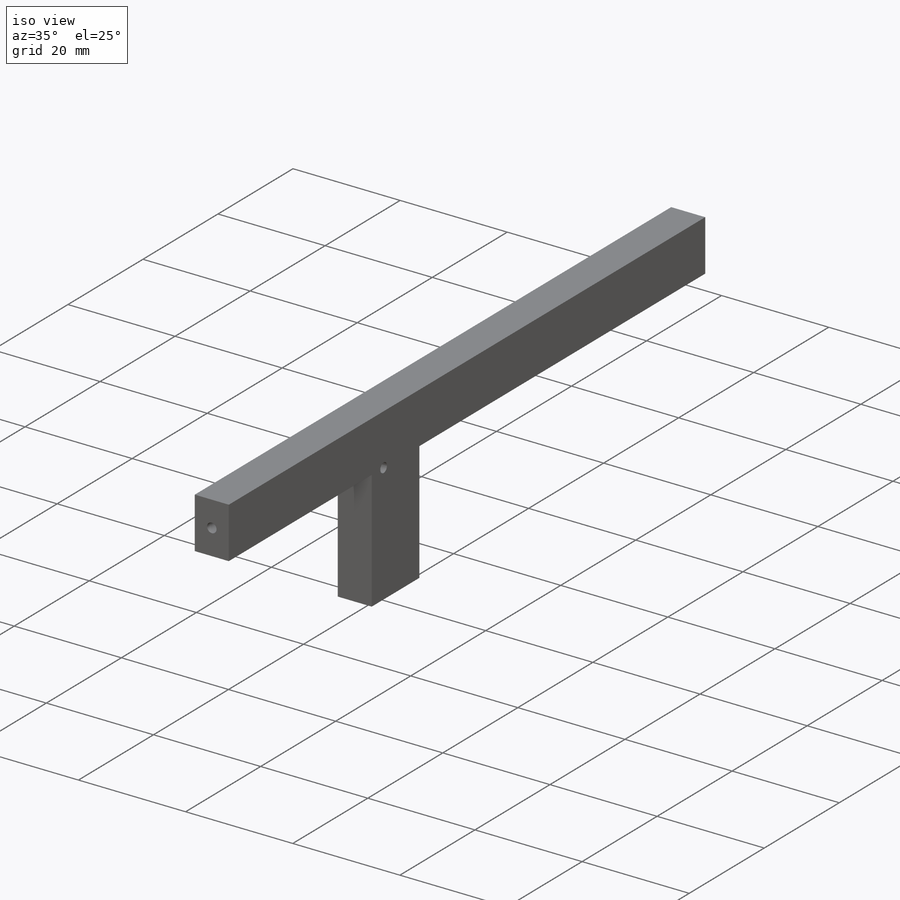
[diagram: iso view]
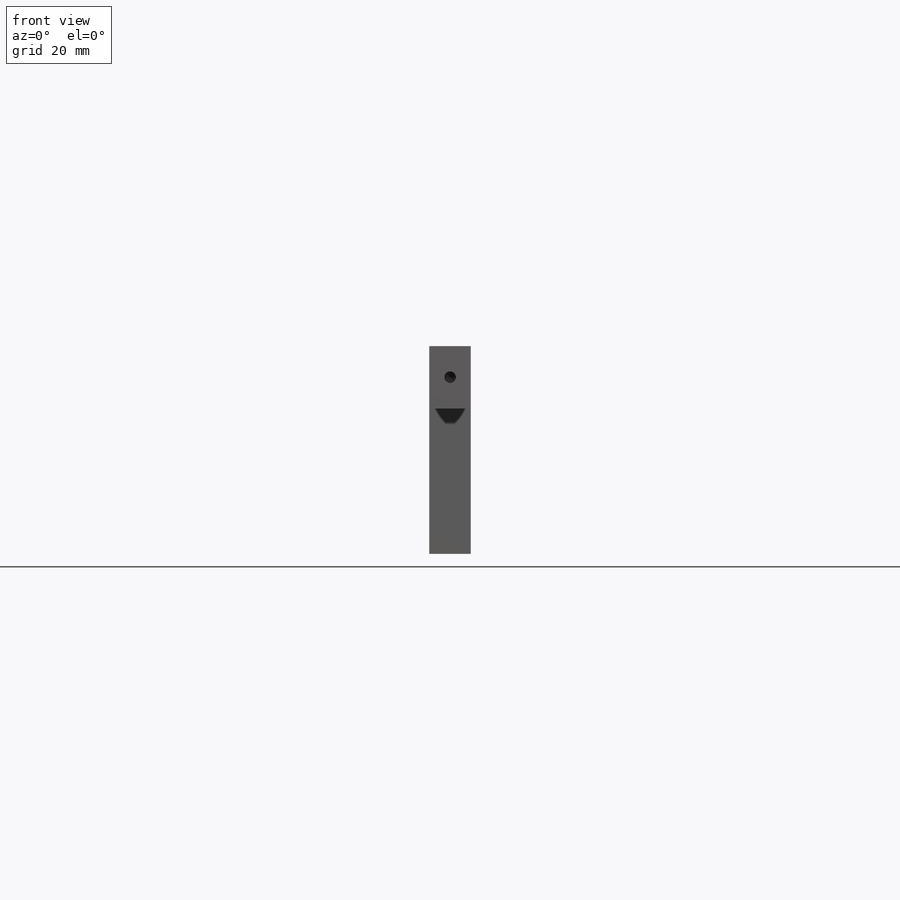
[diagram: front view]
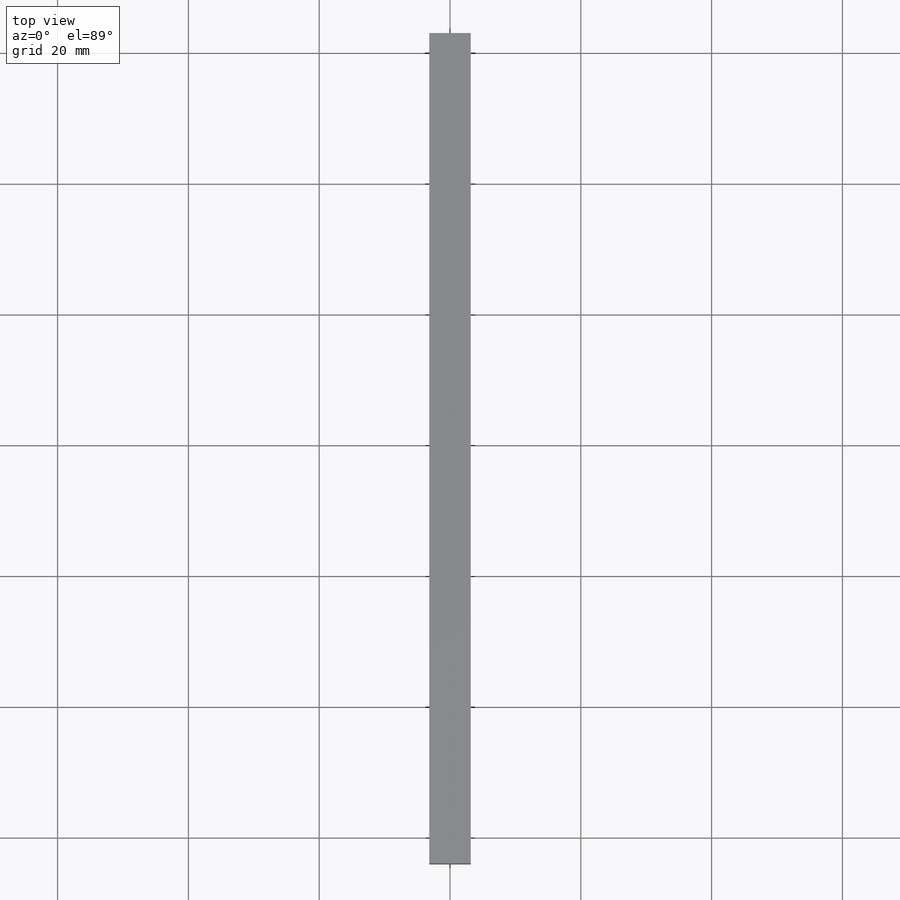
[diagram: top view]
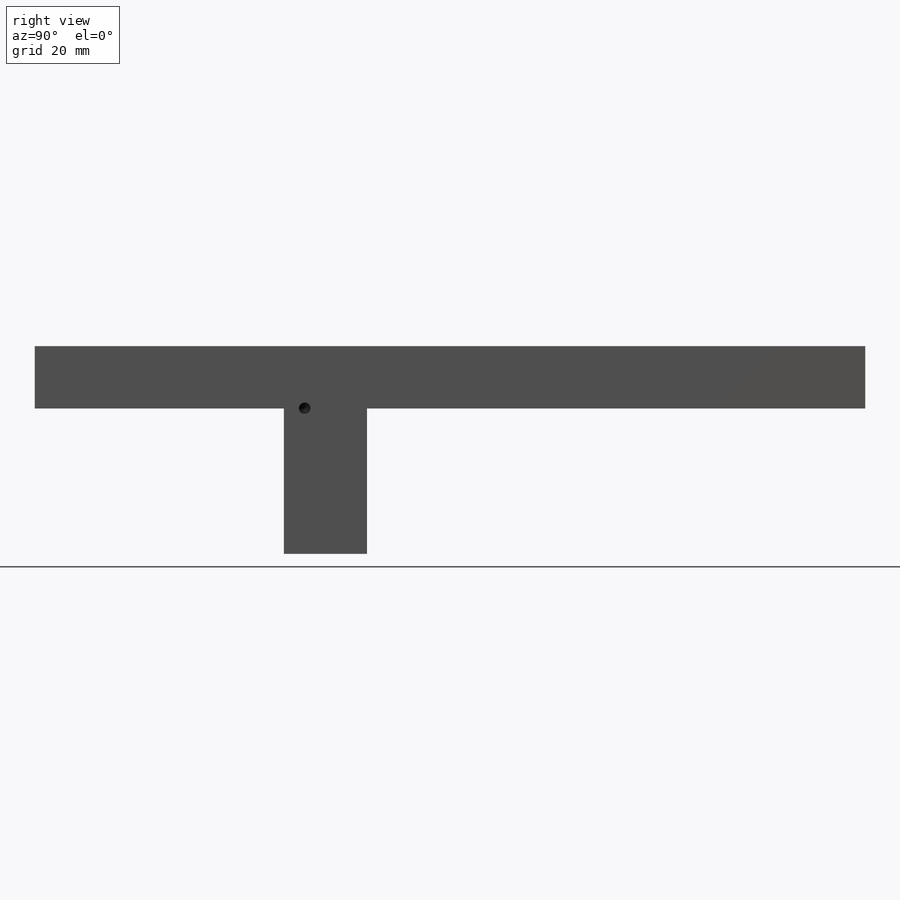
[diagram: right view]
SOLIDWORKS PART (.sldprt)
format: sldprt  version: not decoded by parser v0  size: 250,880 bytes
history: native  units: mm
features: sketch x8, hole x3, thread x3, material x1, extrude x1, cut_extrude x1 (+16 scaffold rows collapsed)
feature tree (33):
  scaffold x16  (default folders/planes/origin — collapsed)
  material  "Material <not specified>"
  sketch  "Sketch1"  dims[D1=44.45mm D2=82.55mm D3=9.525mm D4=6.35mm D5=12.7mm D6=31.75mm]
  extrude  "Boss-Extrude1"  Depth=6.35mm
  sketch  "Sketch2"  dims[D1=3.175mm D2=1.5875mm D3=3.175mm D4=9.525mm]
  cut_extrude  "Cut-Extrude1"  Depth=3.175mm
  hole  "#2-56 Tapped Hole1"  Diameter=1.778mm Depth=5.588mm
  sketch  "Sketch6"
  sketch  "Sketch5"  dims[hole-wizard template sketch: 47 standard entries collapsed; hole parameters kept: c15.Tap Drill Depth=5.588mm c15.D3=~14.816244mm c15.Drill Angle=118.0deg]
  thread  "Hole Thread1"  Diameter=4.318mm  [1 undecoded]
  hole  "#2-56 Tapped Hole2"  Diameter=1.778mm Depth=10.668mm
  sketch  "Sketch8"
  sketch  "Sketch7"  dims[hole-wizard template sketch: 47 standard entries collapsed; hole parameters kept: c15.Tap Drill Depth=10.668mm c15.D3=~14.816244mm c15.Drill Angle=118.0deg]
  thread  "Hole Thread2"  Diameter=4.318mm  [1 undecoded]
  hole  "#2-56 Tapped Hole3"  Diameter=1.778mm Depth=10.668mm
  sketch  "Sketch10"
  sketch  "Sketch9"  dims[hole-wizard template sketch: 47 standard entries collapsed; hole parameters kept: c15.Tap Drill Depth=10.668mm c15.D3=~14.816244mm c15.Drill Angle=118.0deg]
  thread  "Hole Thread3"  Diameter=4.318mm  [1 undecoded]
decode coverage: 13 of 16 modeling features carry decoded parameters
note: ~ marks probable driven/reference dimensions
note: 3 parameter values undecoded
note: suppression state not decoded; provenance and decode notes live in map.json
